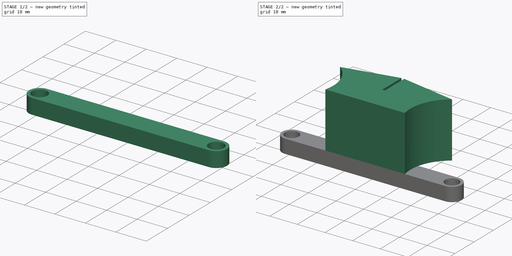
[diagram: build sequence overview — one tinted view per stage of 2, left to right]
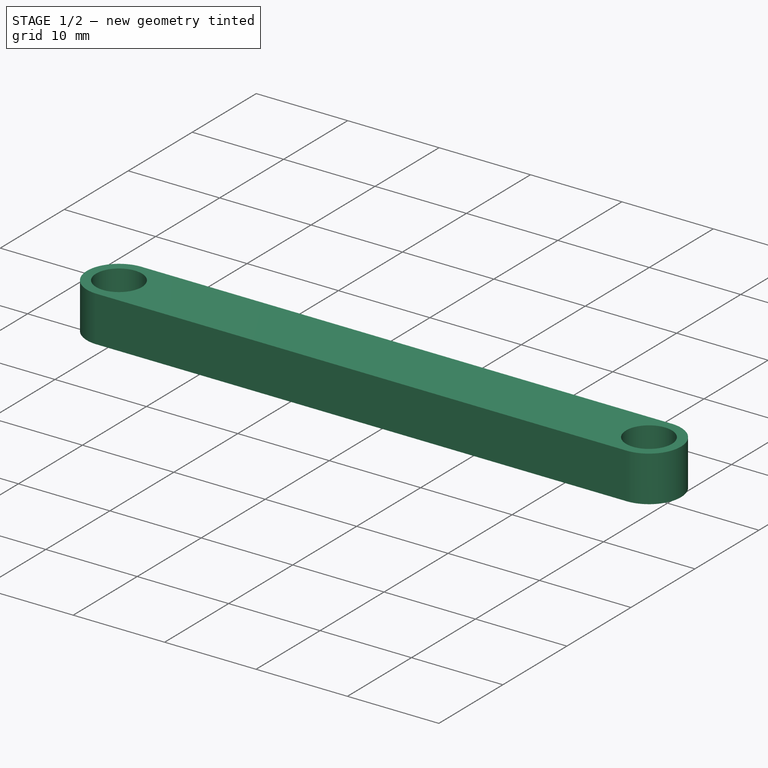
[diagram: stage 1 of 2 — iso view after this stage's code; geometry added in this stage tinted green]
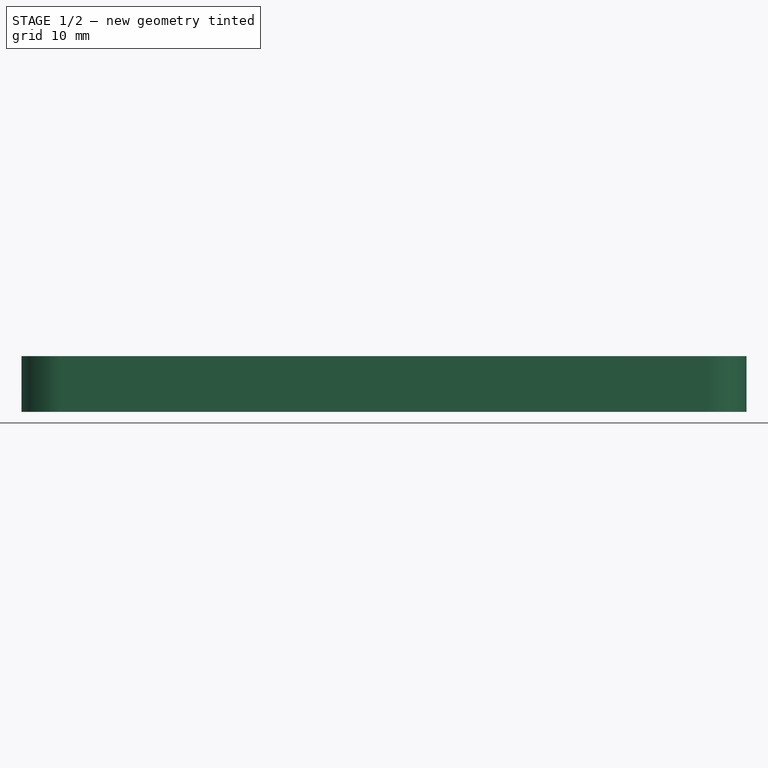
[diagram: stage 1 of 2 — front view after this stage's code; geometry added in this stage tinted green]
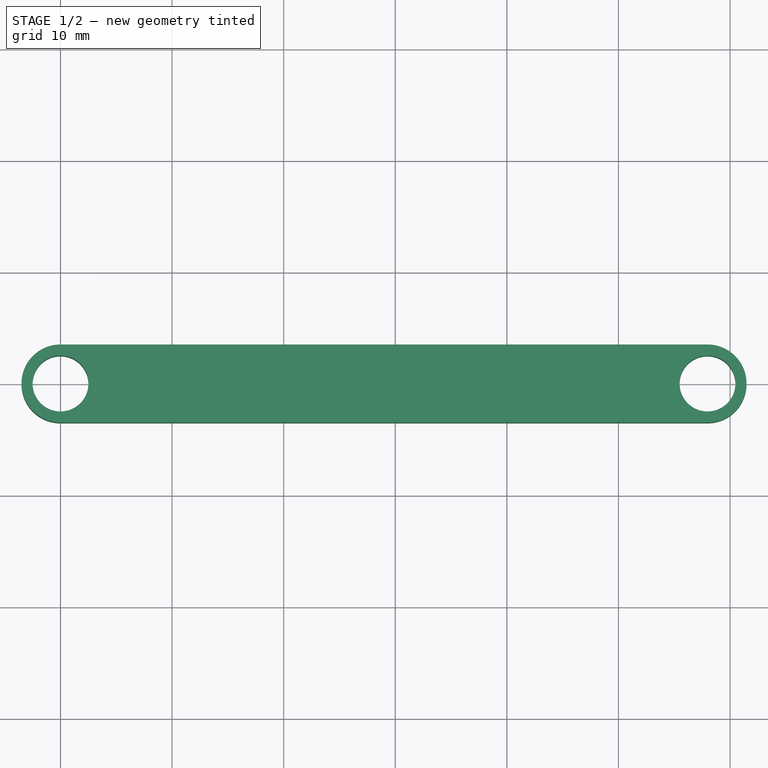
[diagram: stage 1 of 2 — top view after this stage's code; geometry added in this stage tinted green]
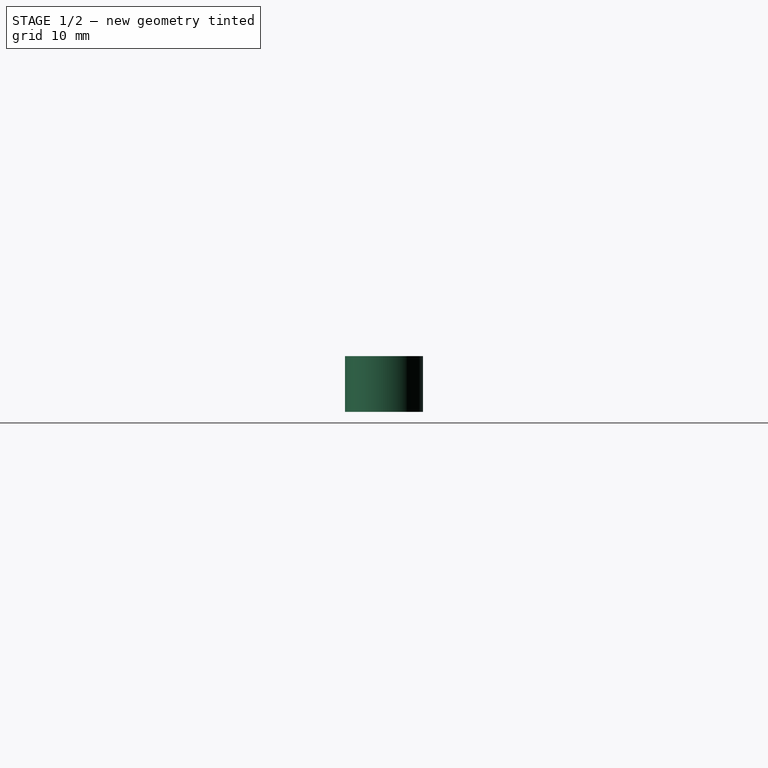
[diagram: stage 1 of 2 — right view after this stage's code; geometry added in this stage tinted green]
FCSTD DOCUMENT  (FreeCAD 0.19R24276 (Git))
Label: Balka_4_A2
License: All rights reserved
LicenseURL: http://en.wikipedia.org/wiki/All_rights_reserved
objects: Sketcher::SketchObject×2, PartDesign::Pad×2, PartDesign::Body×1
note: 7 computed .brp shape members not serialized (recipe doc carries the construction recipe); baked Part::Feature solids carry a one-line shape summary decoded from their .brp

FEATURE [Sketcher::SketchObject] Sketch
  FullyConstrained = false
  MapMode = 5
  Support = -> [XY_Plane]
  sketch-geometry (6):
    g0: Circle CenterX=0 CenterY=0 CenterZ=0 NormalX=0 NormalY=0 NormalZ=1 AngleXU=0 Radius=2.5
    g1: Circle CenterX=57.98 CenterY=0 CenterZ=0 NormalX=0 NormalY=0 NormalZ=1 AngleXU=0 Radius=2.5
    g2: ArcOfCircle CenterX=0 CenterY=0 CenterZ=0 NormalX=0 NormalY=0 NormalZ=1 AngleXU=0 Radius=3.5 StartAngle=1.5708 EndAngle=4.71239
    g3: ArcOfCircle CenterX=57.98 CenterY=0 CenterZ=0 NormalX=0 NormalY=0 NormalZ=1 AngleXU=0 Radius=3.5 StartAngle=4.71239 EndAngle=7.85398
    g4: LineSegment StartX=2e-16 StartY=3.5 StartZ=0 EndX=57.98 EndY=3.5 EndZ=0
    g5: LineSegment StartX=57.98 StartY=-3.5 StartZ=0 EndX=0 EndY=-3.5 EndZ=0
  constraints (12):
    c: Coincident(g0,g-1)
    c: PointOnObject(g1,g-1)
    c: Equal(g0,g1)
    c: Diameter(g1) = 5
    c: DistanceX(g0,g1) = 57.98
    c: Coincident(g2,g0)
    c: Coincident(g3,g1)
    c: Diameter(g2) = 7
    c: Horizontal(g5)
    c: Coincident(g3,g5)
    c: Coincident(g3,g4)
    c: Coincident(g2,g4)
FEATURE [PartDesign::Pad] Pad
  Direction = (1,1,1)
  Length = 5
  Length2 = 100
  Profile = -> Sketch
  Type = 0
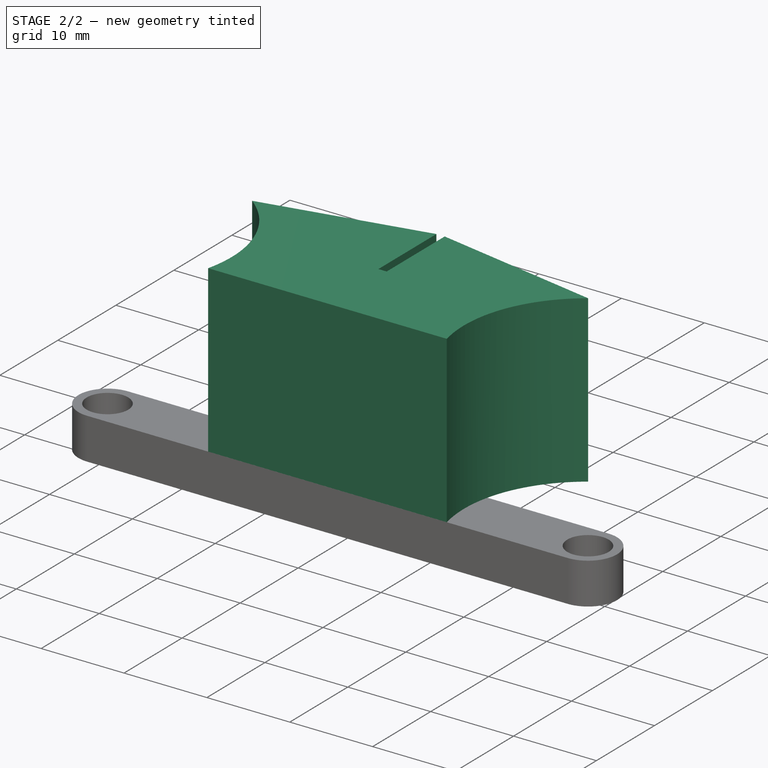
[diagram: stage 2 of 2 — iso view after this stage's code; geometry added in this stage tinted green]
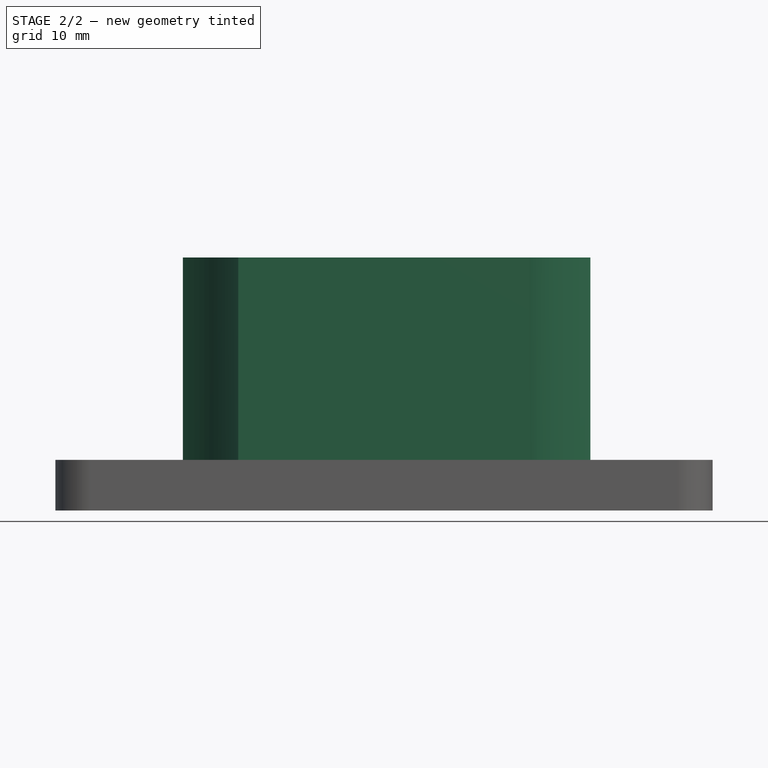
[diagram: stage 2 of 2 — front view after this stage's code; geometry added in this stage tinted green]
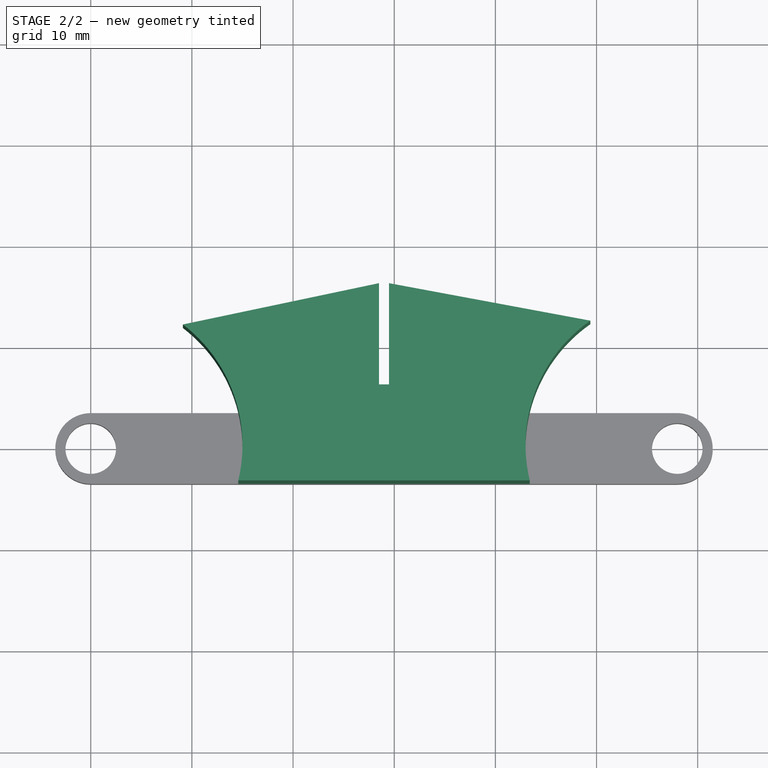
[diagram: stage 2 of 2 — top view after this stage's code; geometry added in this stage tinted green]
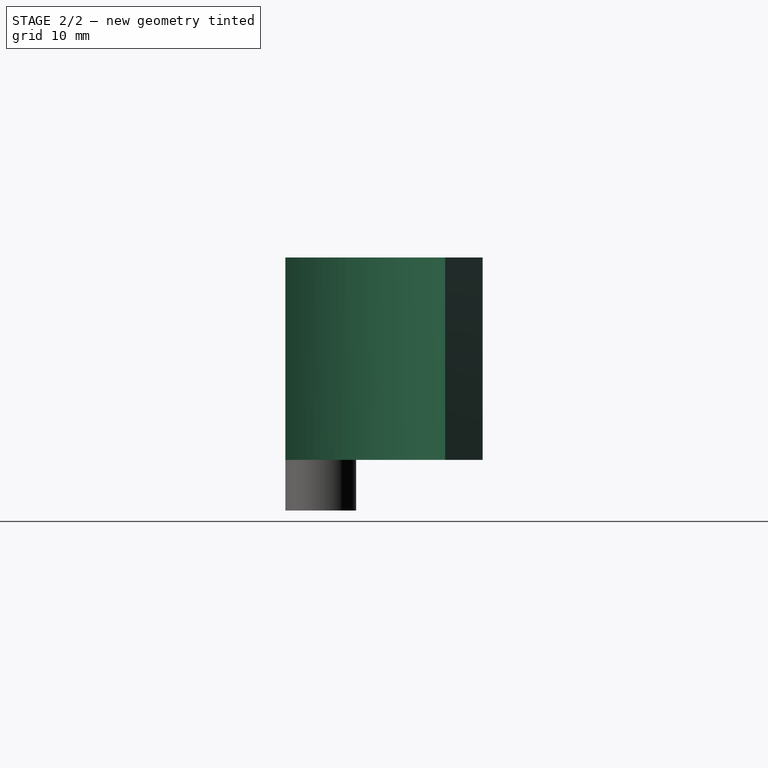
[diagram: stage 2 of 2 — right view after this stage's code; geometry added in this stage tinted green]
FEATURE [Sketcher::SketchObject] Sketch001
  FullyConstrained = false
  MapMode = 5
  Placement = pos=(0,0,5) rot=(0,0,1;0rad)
  Support = -> [Pad]
  sketch-geometry (14):
    g0: LineSegment StartX=-6.42041e-05 StartY=0 StartZ=0 EndX=57.9799 EndY=0 EndZ=0
    g1: Circle CenterX=0 CenterY=0 CenterZ=0 NormalX=0 NormalY=0 NormalZ=1 AngleXU=0 Radius=10
    g2: Circle CenterX=57.9799 CenterY=0 CenterZ=0 NormalX=0 NormalY=0 NormalZ=1 AngleXU=0 Radius=10
    g3: Circle CenterX=0 CenterY=0 CenterZ=0 NormalX=0 NormalY=0 NormalZ=1 AngleXU=0 Radius=14
    g4: Circle CenterX=57.9799 CenterY=0 CenterZ=0 NormalX=0 NormalY=0 NormalZ=1 AngleXU=0 Radius=14
    g5: LineSegment StartX=28.9899 StartY=16 StartZ=0 EndX=28.9899 EndY=0 EndZ=0
    g6: LineSegment StartX=29.4899 StartY=16 StartZ=0 EndX=29.4899 EndY=6 EndZ=0
    g7: LineSegment StartX=29.4899 StartY=16 StartZ=0 EndX=49.3888 EndY=12.296 EndZ=0
    g8: LineSegment StartX=28.4899 StartY=6 StartZ=0 EndX=29.4899 EndY=6 EndZ=0
    g9: LineSegment StartX=28.4899 StartY=6 StartZ=0 EndX=28.4899 EndY=16 EndZ=0
    g10: LineSegment StartX=14.5874 StartY=-3.4945 StartZ=0 EndX=43.3927 EndY=-3.4945 EndZ=0
    g11: ArcOfCircle CenterX=57.9799 CenterY=0 CenterZ=0 NormalX=0 NormalY=0 NormalZ=1 AngleXU=0 Radius=15 StartAngle=2.18064 EndAngle=3.37672
    g12: ArcOfCircle CenterX=8.66026e-05 CenterY=-6.6183e-05 CenterZ=0 NormalX=0 NormalY=0 NormalZ=1 AngleXU=0 Radius=15 StartAngle=6.04806 EndAngle=7.20145
    g13: LineSegment StartX=9.1081 StartY=11.9182 StartZ=0 EndX=28.4899 EndY=16 EndZ=0
  constraints (28):
    c: PointOnObject(g0,g-1)
    c: DistanceX(g0,g0) = 57.98
    c: Equal(g1,g2)
    c: Diameter(g1) = 20
    c: Equal(g3,g4)
    c: Diameter(g3) = 28
    c: Vertical(g5)
    c: Vertical(g6)
    c: DistanceY(g5,g6) = 16
    c: Horizontal(g8)
    c: Coincident(g6,g8)
    c: Coincident(g9,g8)
    c: Horizontal(g10)
    c: Diameter(g11) = 30
    c: Coincident(g11,g7)
    c: Coincident(g11,g10)
    c: Coincident(g11,g0)
    c: Coincident(g2,g11)
    c: Coincident(g4,g11)
    c: Diameter(g12) = 30
    c: Coincident(g13,g9)
    c: Coincident(g12,g10)
    c: Coincident(g13,g12)
    c: DistanceY(g5,g11) = 0
    c: DistanceX(g9,g5) = 0.5
    c: DistanceX(g5,g7) = 0.5
    c: Coincident(g6,g7)
    c: DistanceY(g6,g6) = 10
FEATURE [PartDesign::Pad] Pad001
  BaseFeature = -> Pad
  Direction = (1,1,1)
  Length = 20
  Length2 = 100
  Profile = -> Sketch001
  Type = 0
FEATURE [PartDesign::Body] Body
  Group = -> [Sketch,Pad,Sketch001,Pad001]
  Origin = -> Origin
  Tip = -> Pad001
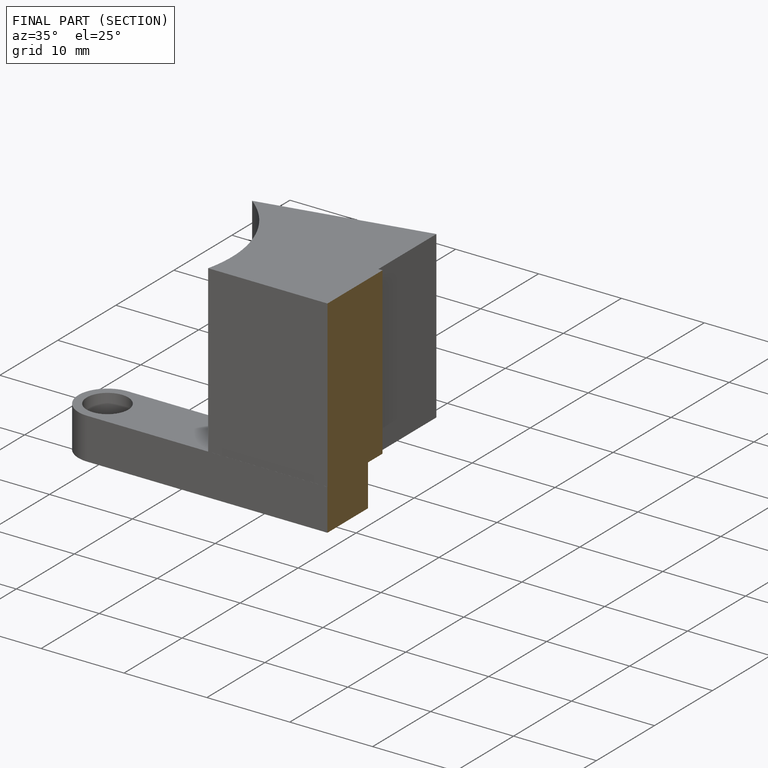
[diagram: finished part — half-section view (interior)]
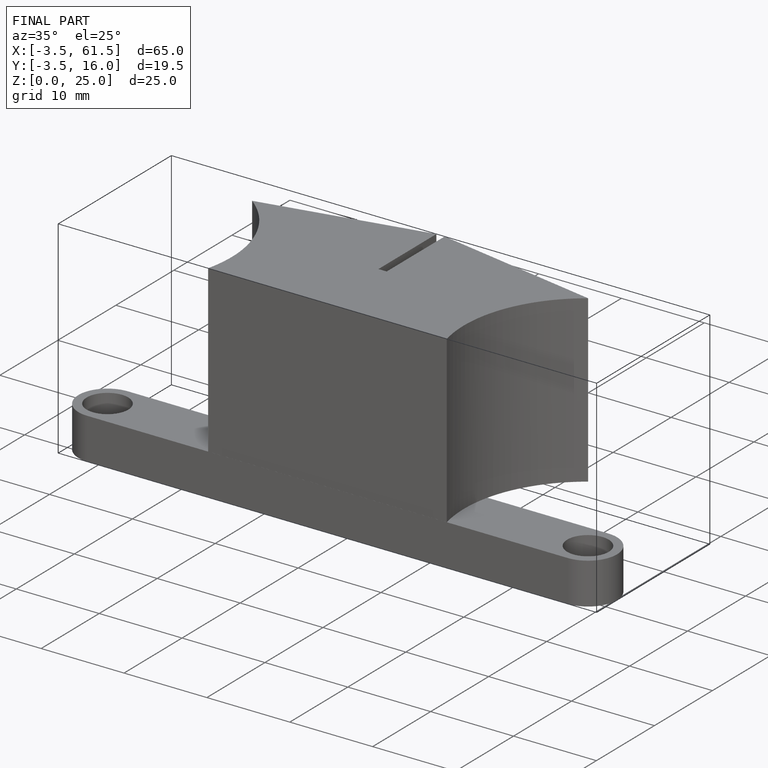
[diagram: finished part — iso view with bounding-box wireframe]
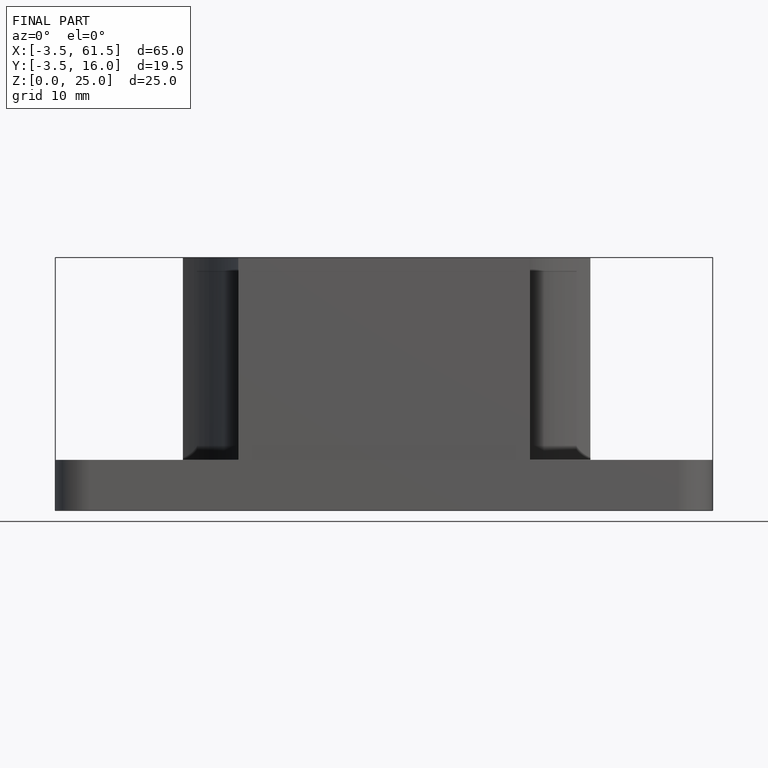
[diagram: finished part — front view with bounding-box wireframe]
